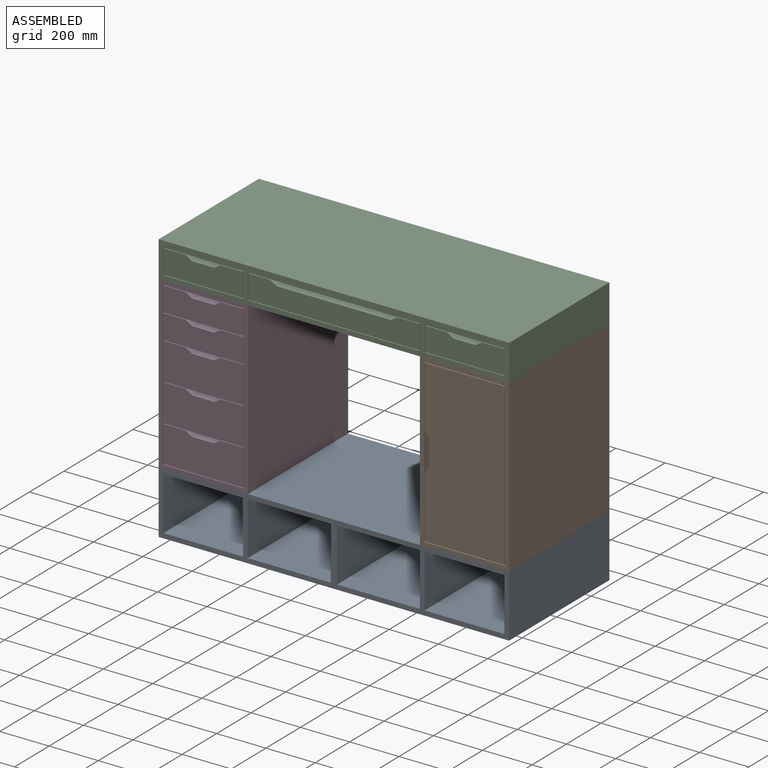
[diagram: assembled view]
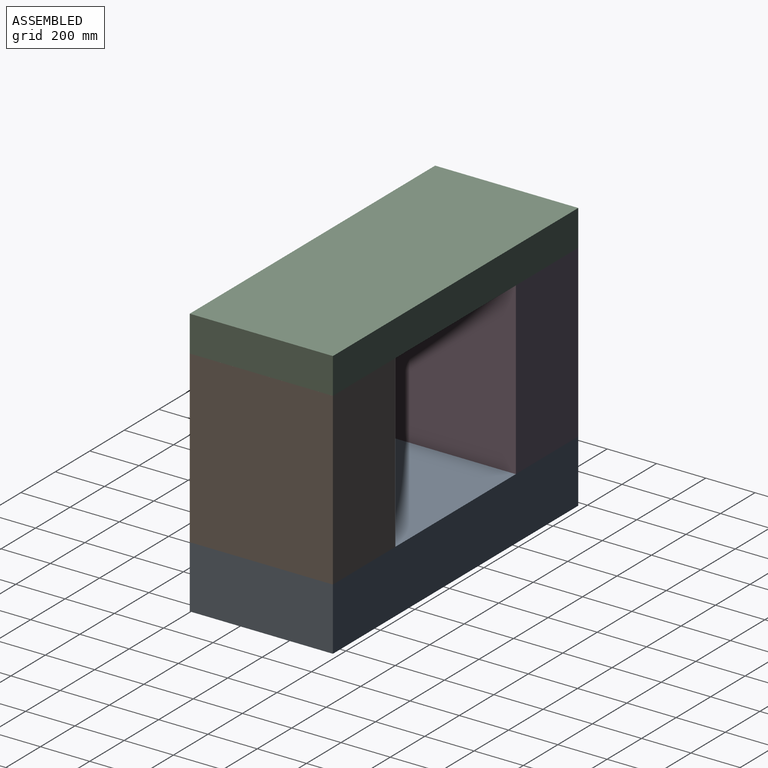
[diagram: assembled view, second angle]
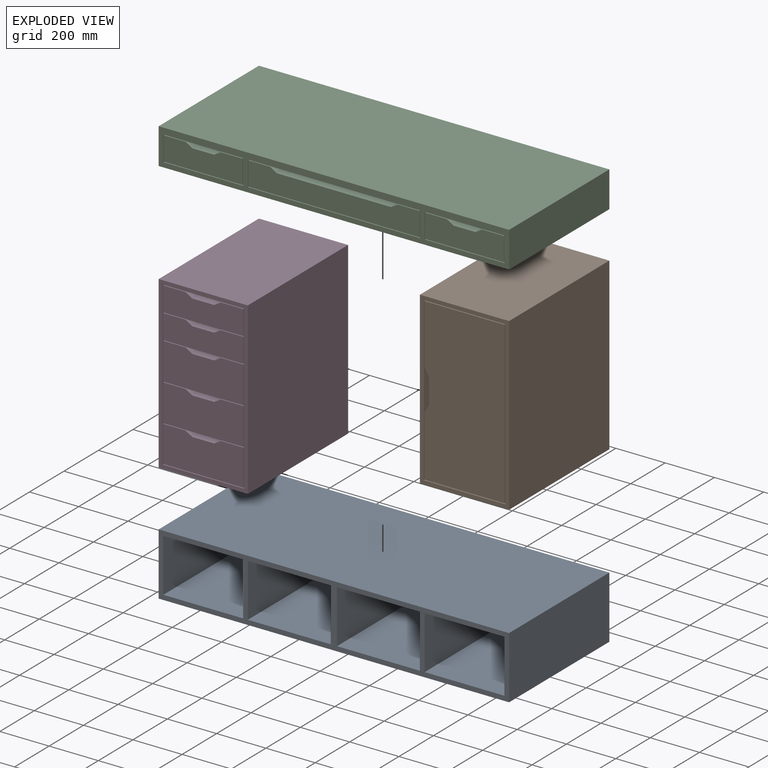
[diagram: exploded view]
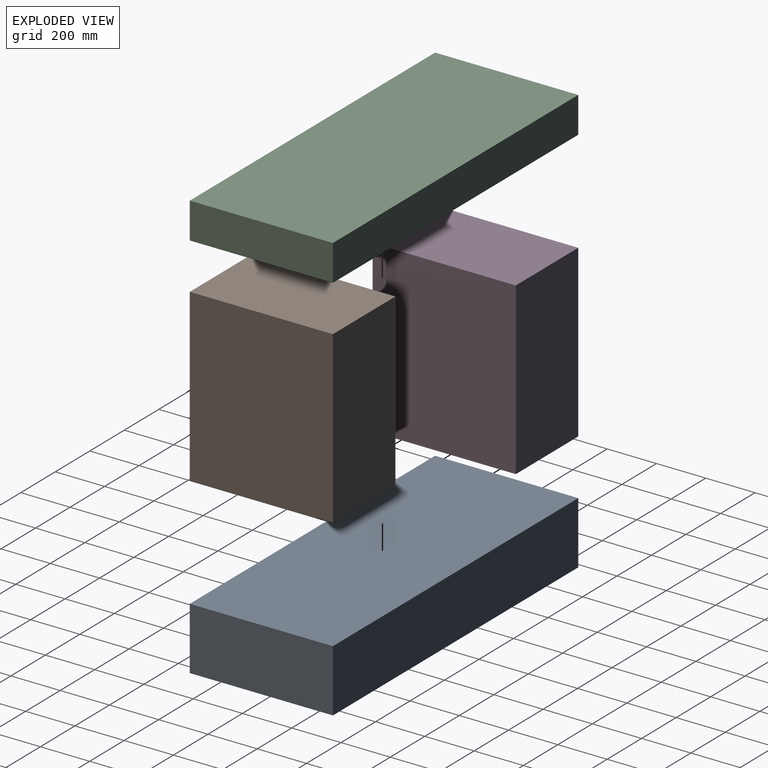
[diagram: exploded view, second angle]
ASSEMBLY  parts=4 mates=3
PART A: 26 faces, bbox 1422.4x581x254 mm
  f0: plane 581.03x254mm, normal (-1,0,0), area 147580.4mm2, adj f1,f3,f4,f5
  f1: plane 1422.4x581.03mm, normal (0,0,-1), area 826450mm2, adj f0,f2,f4,f5
  f2: plane 581.03x254mm, normal (1,0,0), area 147580.4mm2, adj f1,f3,f4,f5
  f3: plane 1422.4x581.03mm, normal (0,0,1), area 826450mm2, adj f0,f2,f4,f5
  f4: plane 1422.4x254mm, normal (0,-1,0), area 76128.9mm2, adj f0,f1,f2,f3,f6,f7,f8,f9
  f5: plane 1422.4x254mm, normal (0,1,0), area 361289.6mm2, adj f0,f1,f2,f3
  f6: plane 565.15x215.9mm, normal (1,0,0), area 122015.9mm2, adj f4,f7,f9,f10
  f7: plane 565.15x323.85mm, normal (0,0,1), area 183023.8mm2, adj f4,f6,f8,f10
  f8: plane 565.15x215.9mm, normal (-1,0,0), area 122015.9mm2, adj f4,f7,f9,f10
  f9: plane 565.15x323.85mm, normal (0,0,-1), area 183023.8mm2, adj f4,f6,f8,f10
  f10: plane 323.85x215.9mm, normal (0,-1,0), area 69919.2mm2, adj f6,f7,f8,f9
  f11: plane 565.15x215.9mm, normal (1,0,0), area 122015.9mm2, adj f4,f12,f14,f15
  f12: plane 565.15x336.55mm, normal (0,0,1), area 190201.2mm2, adj f4,f11,f13,f15
  f13: plane 565.15x215.9mm, normal (-1,0,0), area 122015.9mm2, adj f4,f12,f14,f15
  f14: plane 565.15x336.55mm, normal (0,0,-1), area 190201.2mm2, adj f4,f11,f13,f15
  f15: plane 336.55x215.9mm, normal (0,-1,0), area 72661.1mm2, adj f11,f12,f13,f14
  f16: plane 565.15x215.9mm, normal (1,0,0), area 122015.9mm2, adj f4,f17,f19,f20
  f17: plane 565.15x336.55mm, normal (0,0,1), area 190201.2mm2, adj f4,f16,f18,f20
  f18: plane 565.15x215.9mm, normal (-1,0,0), area 122015.9mm2, adj f4,f17,f19,f20
  f19: plane 565.15x336.55mm, normal (0,0,-1), area 190201.2mm2, adj f4,f16,f18,f20
  f20: plane 336.55x215.9mm, normal (0,-1,0), area 72661.1mm2, adj f16,f17,f18,f19
  f21: plane 565.15x215.9mm, normal (1,0,0), area 122015.9mm2, adj f4,f22,f24,f25
  f22: plane 565.15x323.85mm, normal (0,0,1), area 183023.8mm2, adj f4,f21,f23,f25
  f23: plane 565.15x215.9mm, normal (-1,0,0), area 122015.9mm2, adj f4,f22,f24,f25
  f24: plane 565.15x323.85mm, normal (0,0,-1), area 183023.8mm2, adj f4,f21,f23,f25
  f25: plane 323.85x215.9mm, normal (0,-1,0), area 69919.2mm2, adj f21,f22,f23,f24
PART B: 20 faces, bbox 362x581x692.2 mm
  f0: plane 565.15x241.94mm, normal (-1,0,0), area 136729.6mm2, adj f1,f12,f16,f19
  f1: plane 655.32x325.12mm, normal (0,-1,0), area 210517.3mm2, adj f0,f13,f14,f15,f16,f17,f18,f19
  f2: plane 692.15x581.03mm, normal (-1,0,0), area 402156.5mm2, adj f3,f5,f6,f7
  f3: plane 581.03x361.95mm, normal (0,0,-1), area 210302mm2, adj f2,f4,f6,f7
  f4: plane 692.15x581.03mm, normal (1,0,0), area 402156.5mm2, adj f3,f5,f6,f7
  f5: plane 581.03x361.95mm, normal (0,0,1), area 210302mm2, adj f2,f4,f6,f7
  f6: plane 692.15x361.95mm, normal (0,-1,0), area 32459.6mm2, adj f2,f3,f4,f5,f8,f9,f10,f11
  f7: plane 692.15x361.95mm, normal (0,1,0), area 250523.7mm2, adj f2,f3,f4,f5
  f8: plane 660.4x565.15mm, normal (1,0,0), area 373225.1mm2, adj f6,f9,f11,f12
  f9: plane 565.15x330.2mm, normal (0,0,1), area 186612.5mm2, adj f6,f8,f10,f12
  f10: plane 660.4x565.15mm, normal (-1,0,0), area 373225.1mm2, adj f6,f9,f11,f12
  f11: plane 565.15x330.2mm, normal (0,0,-1), area 186612.5mm2, adj f6,f8,f10,f12
  f12: plane 660.4x330.2mm, normal (0,-1,0), area 7546.8mm2, adj f0,f8,f9,f10,f11,f13,f14,f15
  f13: plane 565.15x248.29mm, normal (-1,0,0), area 140318.3mm2, adj f1,f12,f14,f17
  f14: plane 565.15x325.12mm, normal (0,0,-1), area 183741.6mm2, adj f1,f12,f13,f15
  f15: plane 655.32x565.15mm, normal (1,0,0), area 370354.1mm2, adj f1,f12,f14,f16
  f16: plane 565.15x325.12mm, normal (0,0,1), area 183741.6mm2, adj f0,f1,f12,f15
  f17: plane 565.15x31.75mm, normal (-0.86,0,0.51), area 20925.6mm2, adj f1,f12,f13,f18
  f18: plane 565.15x101.6mm, normal (-1,0,0), area 57419.2mm2, adj f1,f12,f17,f19
  f19: plane 565.15x31.75mm, normal (-0.86,0,-0.51), area 20925.6mm2, adj f0,f1,f12,f18
PART C: 48 faces, bbox 1422.4x581x146.1 mm
  f0: plane 1422.4x146.05mm, normal (0,-1,0), area 70967.6mm2, adj f1,f2,f3,f4,f6,f7,f8,f17
  f1: plane 581.03x146.05mm, normal (-1,0,0), area 84858.7mm2, adj f0,f2,f4,f5
  f2: plane 1422.4x581.03mm, normal (0,0,-1), area 826450mm2, adj f0,f1,f3,f5
  f3: plane 581.03x146.05mm, normal (1,0,0), area 84858.7mm2, adj f0,f2,f4,f5
  f4: plane 1422.4x581.03mm, normal (0,0,1), area 826450mm2, adj f0,f1,f3,f5
  f5: plane 1422.4x146.05mm, normal (0,1,0), area 207741.5mm2, adj f1,f2,f3,f4
  f6: plane 565.15x101.6mm, normal (-1,0,0), area 57419.2mm2, adj f0,f7,f17,f18
  f7: plane 565.15x323.85mm, normal (0,0,-1), area 183023.8mm2, adj f0,f6,f8,f18
  f8: plane 565.15x101.6mm, normal (1,0,0), area 57419.2mm2, adj f0,f7,f17,f18
  f9: plane 565.15x27.52mm, normal (-0.51,0,0.86), area 18135.5mm2, adj f10,f16,f18,f19
  f10: plane 565.15x87.42mm, normal (0,0,1), area 49404.5mm2, adj f9,f11,f18,f19
  f11: plane 565.15x96.52mm, normal (1,0,0), area 54548.3mm2, adj f10,f12,f18,f19
  f12: plane 565.15x318.77mm, normal (0,0,-1), area 180152.9mm2, adj f11,f13,f18,f19
  f13: plane 565.15x96.52mm, normal (-1,0,0), area 54548.3mm2, adj f12,f14,f18,f19
  f14: plane 565.15x87.42mm, normal (0,0,1), area 49404.5mm2, adj f13,f15,f18,f19
  f15: plane 565.15x27.52mm, normal (0.51,0,0.86), area 18135.5mm2, adj f14,f16,f18,f19
  f16: plane 565.15x88.9mm, normal (0,0,1), area 50241.8mm2, adj f9,f15,f18,f19
  f17: plane 565.15x323.85mm, normal (0,0,1), area 183023.8mm2, adj f0,f6,f8,f18
  f18: plane 323.85x101.6mm, normal (0,-1,0), area 4057.5mm2, adj f6,f7,f8,f9,f10,f11,f12,f13
  f19: plane 318.77x96.52mm, normal (0,-1,0), area 28845.6mm2, adj f9,f10,f11,f12,f13,f14,f15,f16
  f20: plane 565.15x101.6mm, normal (-1,0,0), area 57419.2mm2, adj f0,f21,f31,f32
  f21: plane 698.5x565.15mm, normal (0,0,-1), area 394757.3mm2, adj f0,f20,f22,f32
  f22: plane 565.15x101.6mm, normal (1,0,0), area 57419.2mm2, adj f0,f21,f31,f32
  f23: plane 565.15x87.42mm, normal (0,0,1), area 49404.5mm2, adj f24,f30,f32,f33
  f24: plane 565.15x27.52mm, normal (0.51,0,0.86), area 18135.5mm2, adj f23,f25,f32,f33
  f25: plane 565.15x463.55mm, normal (0,0,1), area 261975.3mm2, adj f24,f26,f32,f33
  f26: plane 565.15x27.52mm, normal (-0.51,0,0.86), area 18135.5mm2, adj f25,f27,f32,f33
  f27: plane 565.15x87.42mm, normal (0,0,1), area 49404.5mm2, adj f26,f28,f32,f33
  f28: plane 565.15x96.52mm, normal (1,0,0), area 54548.3mm2, adj f27,f29,f32,f33
  f29: plane 693.42x565.15mm, normal (0,0,-1), area 391886.3mm2, adj f28,f30,f32,f33
  f30: plane 565.15x96.52mm, normal (-1,0,0), area 54548.3mm2, adj f23,f29,f32,f33
  f31: plane 698.5x565.15mm, normal (0,0,1), area 394757.3mm2, adj f0,f20,f22,f32
  f32: plane 698.5x101.6mm, normal (0,-1,0), area 12146.2mm2, adj f20,f21,f22,f23,f24,f25,f26,f27
  f33: plane 693.42x96.52mm, normal (0,-1,0), area 58821.4mm2, adj f23,f24,f25,f26,f27,f28,f29,f30
  f34: plane 565.15x101.6mm, normal (-1,0,0), area 57419.2mm2, adj f0,f35,f45,f46
  f35: plane 565.15x323.85mm, normal (0,0,-1), area 183023.8mm2, adj f0,f34,f36,f46
  f36: plane 565.15x101.6mm, normal (1,0,0), area 57419.2mm2, adj f0,f35,f45,f46
  f37: plane 565.15x87.42mm, normal (0,0,1), area 49404.5mm2, adj f38,f44,f46,f47
  f38: plane 565.15x27.52mm, normal (0.51,0,0.86), area 18135.5mm2, adj f37,f39,f46,f47
  f39: plane 565.15x88.9mm, normal (0,0,1), area 50241.8mm2, adj f38,f40,f46,f47
  f40: plane 565.15x27.52mm, normal (-0.51,0,0.86), area 18135.5mm2, adj f39,f41,f46,f47
  f41: plane 565.15x87.42mm, normal (0,0,1), area 49404.5mm2, adj f40,f42,f46,f47
  f42: plane 565.15x96.52mm, normal (1,0,0), area 54548.3mm2, adj f41,f43,f46,f47
  f43: plane 565.15x318.77mm, normal (0,0,-1), area 180152.9mm2, adj f42,f44,f46,f47
  f44: plane 565.15x96.52mm, normal (-1,0,0), area 54548.3mm2, adj f37,f43,f46,f47
  f45: plane 565.15x323.85mm, normal (0,0,1), area 183023.8mm2, adj f0,f34,f36,f46
  f46: plane 323.85x101.6mm, normal (0,-1,0), area 4057.5mm2, adj f34,f35,f36,f37,f38,f39,f40,f41
  f47: plane 318.77x96.52mm, normal (0,-1,0), area 28845.6mm2, adj f37,f38,f39,f40,f41,f42,f43,f44
PART D: 61 faces, bbox 362x581x692.2 mm
  f0: plane 692.15x361.95mm, normal (0,-1,0), area 32459.6mm2, adj f5,f7,f8,f9,f10,f52,f53,f59
  f1: plane 325.12x99.06mm, normal (0,-1,0), area 30284.3mm2, adj f20,f22,f23,f29,f42,f54,f55,f56
  f2: plane 325.12x149.86mm, normal (0,-1,0), area 46800.4mm2, adj f14,f16,f18,f27,f37,f38,f48,f49
  f3: plane 325.12x99.06mm, normal (0,-1,0), area 30284.3mm2, adj f17,f19,f21,f28,f39,f50,f51,f58
  f4: plane 325.12x149.86mm, normal (0,-1,0), area 46800.4mm2, adj f13,f15,f25,f31,f36,f46,f47,f57
  f5: plane 565.15x330.2mm, normal (0,0,-1), area 90645mm2, adj f0,f6,f22,f29,f43,f52,f59
  f6: plane 152.4x19.05mm, normal (0,-1,0), area 2298.4mm2, adj f5,f22,f23,f29
  f7: plane 692.15x581.03mm, normal (-1,0,0), area 402156.5mm2, adj f0,f8,f10,f12
  f8: plane 581.03x361.95mm, normal (0,0,-1), area 210302mm2, adj f0,f7,f9,f12
  f9: plane 692.15x581.03mm, normal (1,0,0), area 402156.5mm2, adj f0,f8,f10,f12
  f10: plane 581.03x361.95mm, normal (0,0,1), area 210302mm2, adj f0,f7,f9,f12
  f11: plane 325.12x147.32mm, normal (0,-1,0), area 45974.6mm2, adj f24,f26,f30,f40,f41,f44,f45,f60
  f12: plane 692.15x361.95mm, normal (0,1,0), area 250523.7mm2, adj f7,f8,f9,f10
  f13: plane 565.15x31.75mm, normal (0.51,0,0.86), area 20800.2mm2, adj f4,f14,f31,f32,f36,f43
  f14: plane 565.15x325.12mm, normal (0,0,-1), area 90515.9mm2, adj f2,f13,f15,f32,f43,f48,f49
  f15: plane 565.15x31.75mm, normal (-0.51,0,0.86), area 20800.2mm2, adj f4,f14,f31,f32,f43,f57
  f16: plane 565.15x31.75mm, normal (0.51,0,0.86), area 20800.2mm2, adj f2,f17,f27,f35,f37,f43
  f17: plane 565.15x325.12mm, normal (0,0,-1), area 90515.9mm2, adj f3,f16,f18,f35,f43,f50,f51
  f18: plane 565.15x31.75mm, normal (-0.51,0,0.86), area 20800.2mm2, adj f2,f17,f27,f35,f38,f43
  f19: plane 565.15x31.75mm, normal (0.51,0,0.86), area 20800.2mm2, adj f3,f20,f28,f34,f39,f43
  f20: plane 565.15x325.12mm, normal (0,0,-1), area 90515.9mm2, adj f1,f19,f21,f34,f43,f54,f56
  f21: plane 565.15x31.75mm, normal (-0.51,0,0.86), area 20800.2mm2, adj f3,f20,f28,f34,f43,f58
  f22: plane 565.15x31.75mm, normal (-0.51,0,0.86), area 20800.2mm2, adj f1,f5,f6,f23,f43,f55
  f23: plane 565.15x88.9mm, normal (0,0,1), area 50241.8mm2, adj f1,f6,f22,f29
  f24: plane 565.15x31.75mm, normal (0.51,0,0.86), area 20800.2mm2, adj f11,f25,f30,f33,f40,f43
  f25: plane 565.15x325.12mm, normal (0,0,-1), area 90515.9mm2, adj f4,f24,f26,f33,f43,f46,f47
  f26: plane 565.15x31.75mm, normal (-0.51,0,0.86), area 20800.2mm2, adj f11,f25,f30,f33,f41,f43
  f27: plane 565.15x88.9mm, normal (0,0,1), area 50241.8mm2, adj f2,f16,f18,f35
  f28: plane 565.15x88.9mm, normal (0,0,1), area 50241.8mm2, adj f3,f19,f21,f34
  f29: plane 565.15x31.75mm, normal (0.51,0,0.86), area 20800.2mm2, adj f1,f5,f6,f23,f42,f43
  f30: plane 565.15x88.9mm, normal (0,0,1), area 50241.8mm2, adj f11,f24,f26,f33
  f31: plane 565.15x88.9mm, normal (0,0,1), area 50241.8mm2, adj f4,f13,f15,f32
  f32: plane 152.4x19.05mm, normal (0,-1,0), area 2298.4mm2, adj f13,f14,f15,f31
  f33: plane 152.4x19.05mm, normal (0,-1,0), area 2298.4mm2, adj f24,f25,f26,f30
  f34: plane 152.4x19.05mm, normal (0,-1,0), area 2298.4mm2, adj f19,f20,f21,f28
  f35: plane 152.4x19.05mm, normal (0,-1,0), area 2298.4mm2, adj f16,f17,f18,f27
  f36: plane 90.59x25.4mm, normal (0,0,1), area 2301.1mm2, adj f4,f13,f43,f47
  f37: plane 90.59x25.4mm, normal (0,0,1), area 2301.1mm2, adj f2,f16,f43,f49
  f38: plane 90.59x25.4mm, normal (0,0,1), area 2301.1mm2, adj f2,f18,f43,f48
  f39: plane 90.59x25.4mm, normal (0,0,1), area 2301.1mm2, adj f3,f19,f43,f51
  f40: plane 90.59x25.4mm, normal (0,0,1), area 2301.1mm2, adj f11,f24,f43,f60
  f41: plane 90.59x25.4mm, normal (0,0,1), area 2301.1mm2, adj f11,f26,f43,f44
  f42: plane 90.59x25.4mm, normal (0,0,1), area 2301.1mm2, adj f1,f29,f43,f54
  f43: plane 660.4x330.2mm, normal (0,-1,0), area 6427.9mm2, adj f5,f13,f14,f15,f16,f17,f18,f19
  f44: plane 147.32x25.4mm, normal (1,0,0), area 3741.9mm2, adj f11,f41,f43,f45
  f45: plane 325.12x25.4mm, normal (0,0,-1), area 8258mm2, adj f11,f43,f44,f60
  f46: plane 149.86x25.4mm, normal (1,0,0), area 3806.4mm2, adj f4,f25,f43,f57
  f47: plane 149.86x25.4mm, normal (-1,0,0), area 3806.4mm2, adj f4,f25,f36,f43
  f48: plane 149.86x25.4mm, normal (1,0,0), area 3806.4mm2, adj f2,f14,f38,f43
  f49: plane 149.86x25.4mm, normal (-1,0,0), area 3806.4mm2, adj f2,f14,f37,f43
  f50: plane 99.06x25.4mm, normal (1,0,0), area 2516.1mm2, adj f3,f17,f43,f58
  f51: plane 99.06x25.4mm, normal (-1,0,0), area 2516.1mm2, adj f3,f17,f39,f43
  f52: plane 660.4x25.4mm, normal (1,0,0), area 16774.2mm2, adj f0,f5,f43,f53
  f53: plane 330.2x25.4mm, normal (0,0,1), area 8387.1mm2, adj f0,f43,f52,f59
  f54: plane 99.06x25.4mm, normal (-1,0,0), area 2516.1mm2, adj f1,f20,f42,f43
  f55: plane 90.59x25.4mm, normal (0,0,1), area 2301.1mm2, adj f1,f22,f43,f56
  f56: plane 99.06x25.4mm, normal (1,0,0), area 2516.1mm2, adj f1,f20,f43,f55
  f57: plane 90.59x25.4mm, normal (0,0,1), area 2301.1mm2, adj f4,f15,f43,f46
  f58: plane 90.59x25.4mm, normal (0,0,1), area 2301.1mm2, adj f3,f21,f43,f50
  f59: plane 660.4x25.4mm, normal (-1,0,0), area 16774.2mm2, adj f0,f5,f43,f53
  f60: plane 147.32x25.4mm, normal (-1,0,0), area 3741.9mm2, adj f11,f40,f43,f45
PLACE A t=(-331.93,290.51,-135.05)mm
PLACE B t=(728.52,290.51,118.95)mm
PLACE C t=(-331.93,290.51,811.1)mm
PLACE D t=(-331.93,290.51,118.95)mm
MATE fastened A.f3 <-> B.f3  axis (0,0,1) through (1090.47,0,118.95)mm
MATE fastened D.f8 <-> A.f3  axis (0,0,-1) through (-331.93,0,118.95)mm
MATE fastened D.f10 <-> C.f2  axis (0,0,1) through (-331.93,0,811.1)mm
